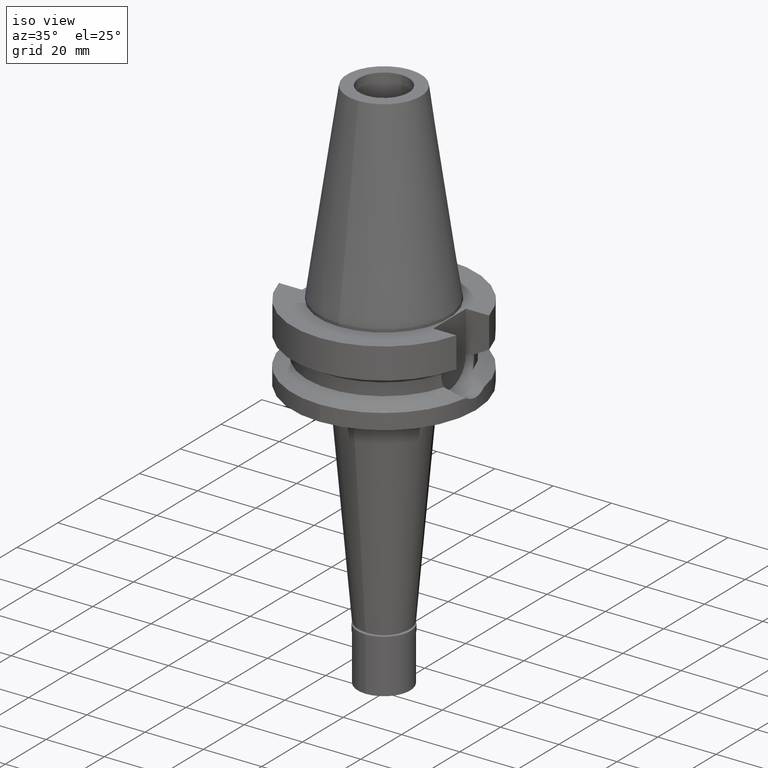
[diagram: clean part render]
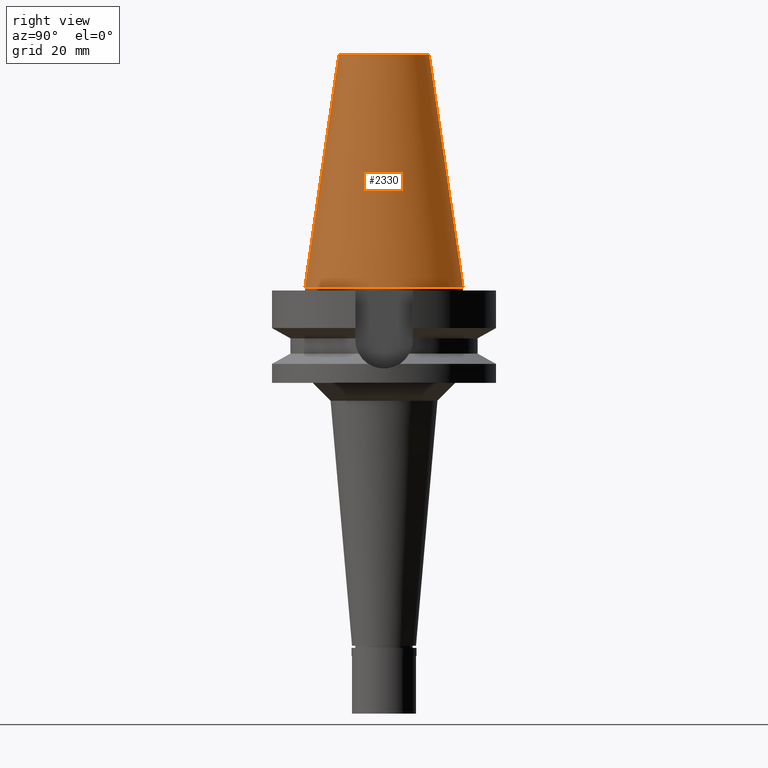
[diagram: tour spotlight — one face highlighted and labeled with its STEP entity id]
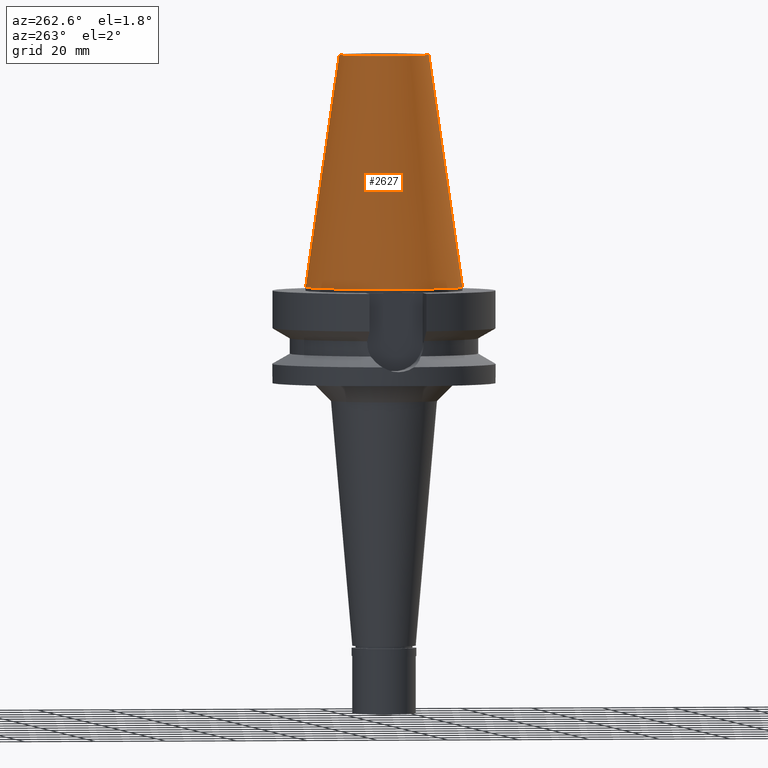
[diagram: tour spotlight — one face highlighted and labeled with its STEP entity id]
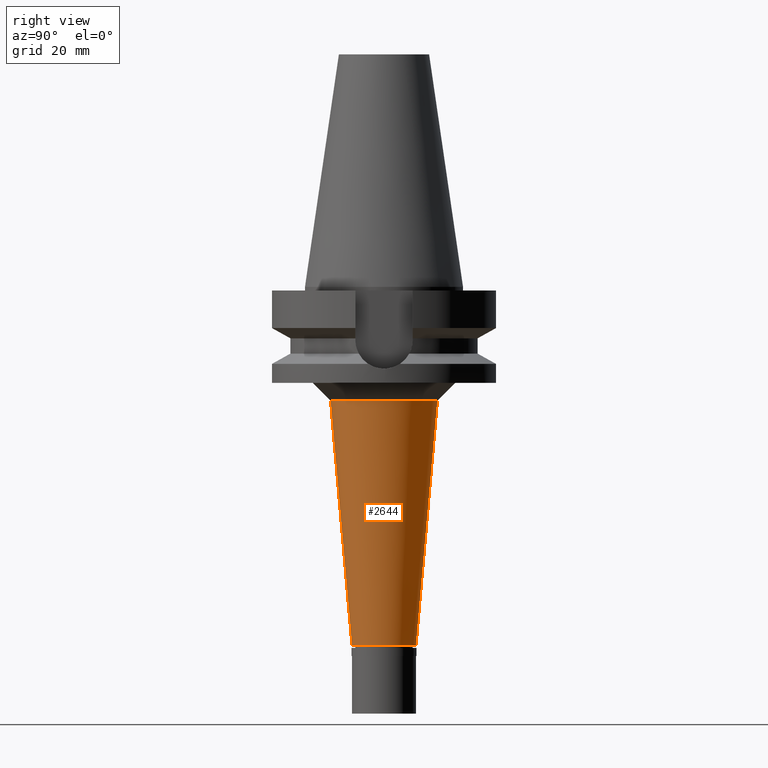
[diagram: tour spotlight — one face highlighted and labeled with its STEP entity id]
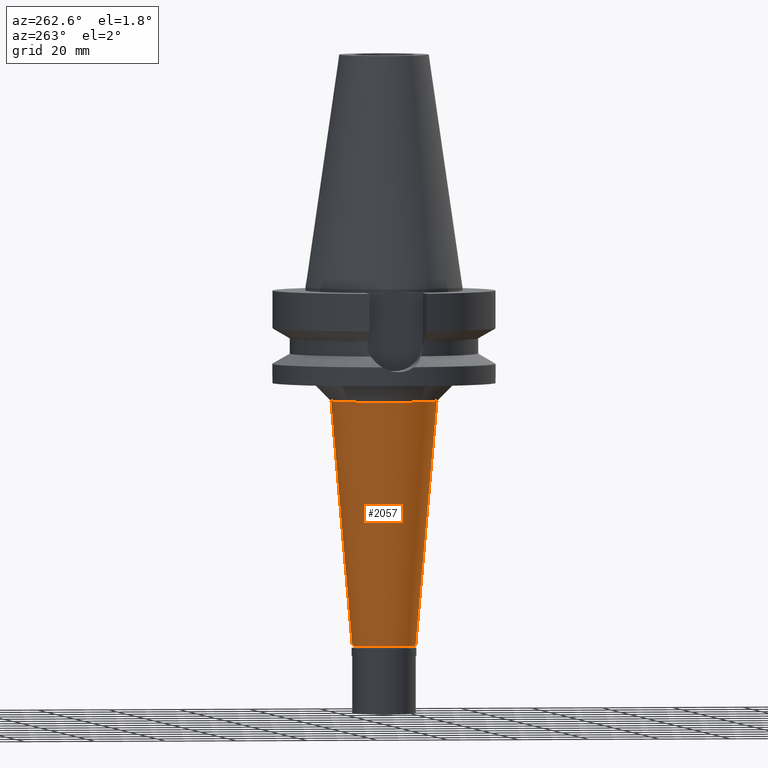
[diagram: tour spotlight — one face highlighted and labeled with its STEP entity id]
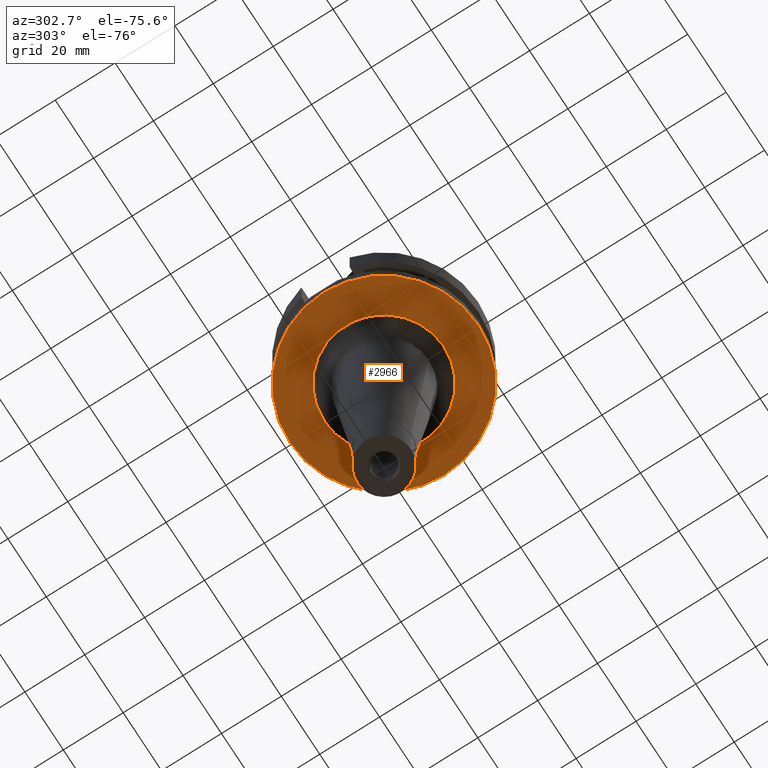
[diagram: tour spotlight — one face highlighted and labeled with its STEP entity id]
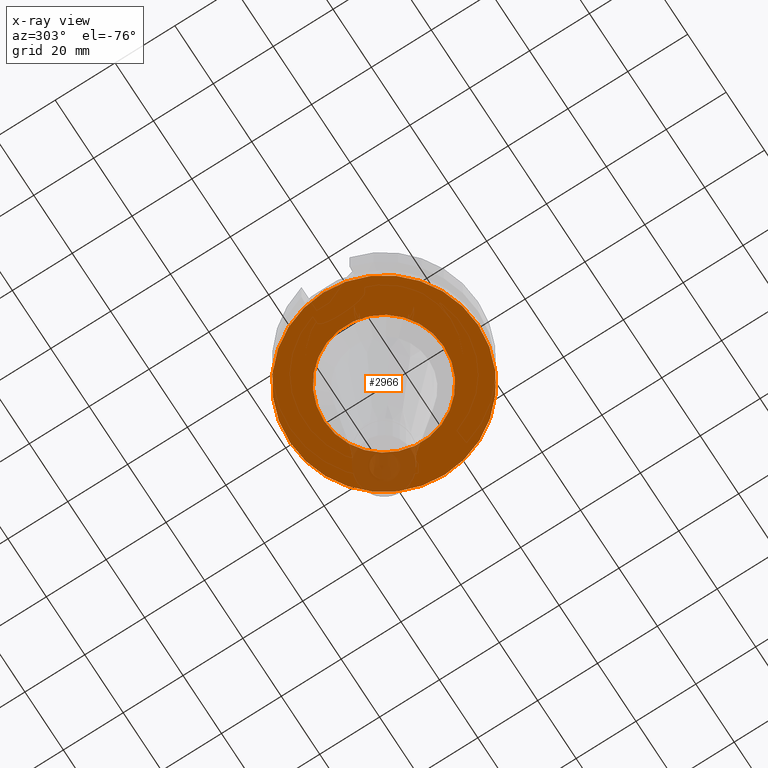
[diagram: x-ray of the same camera — body ghosted, this tour face saturated]
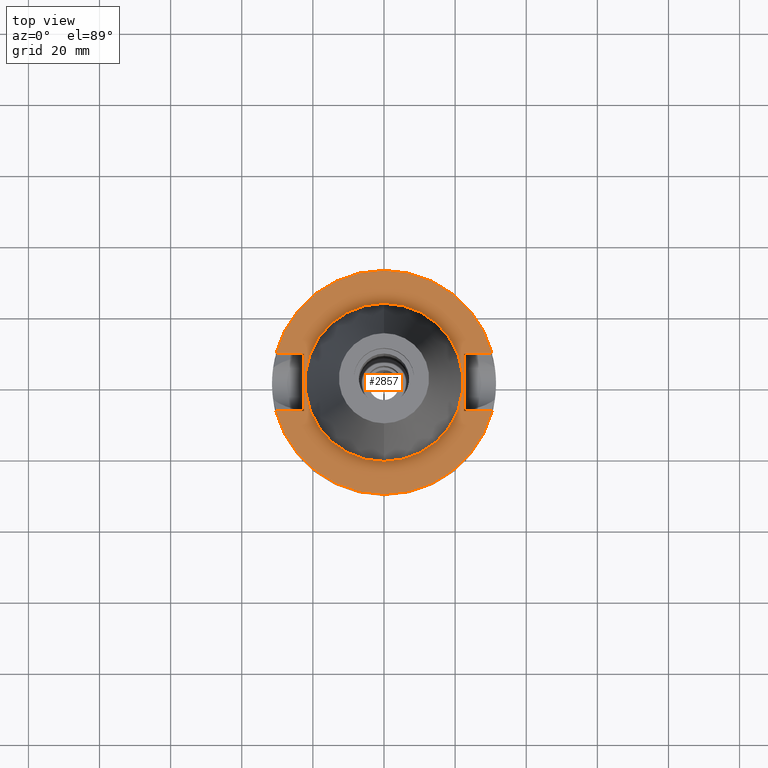
[diagram: tour spotlight — one face highlighted and labeled with its STEP entity id]
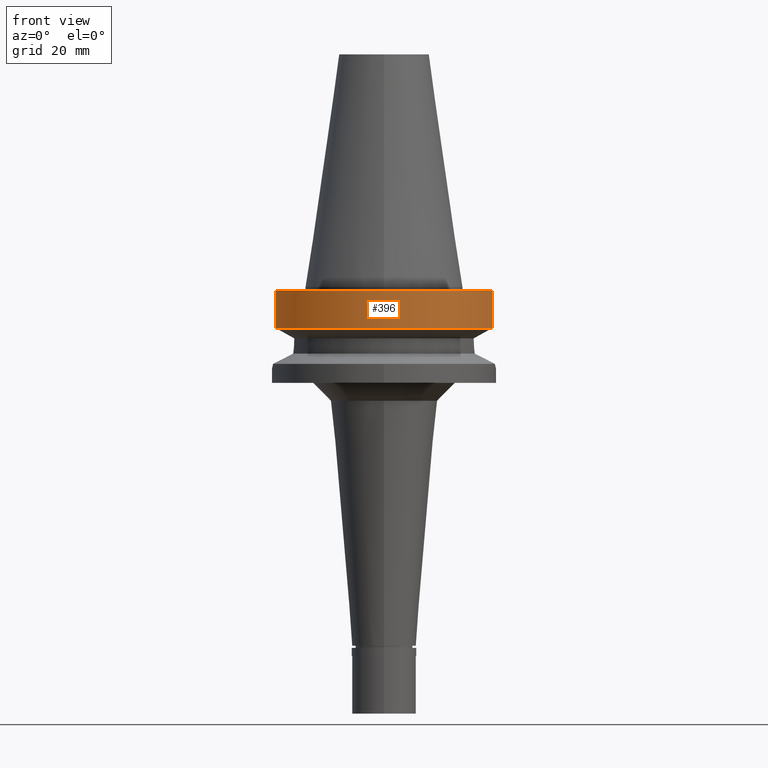
[diagram: tour spotlight — one face highlighted and labeled with its STEP entity id]
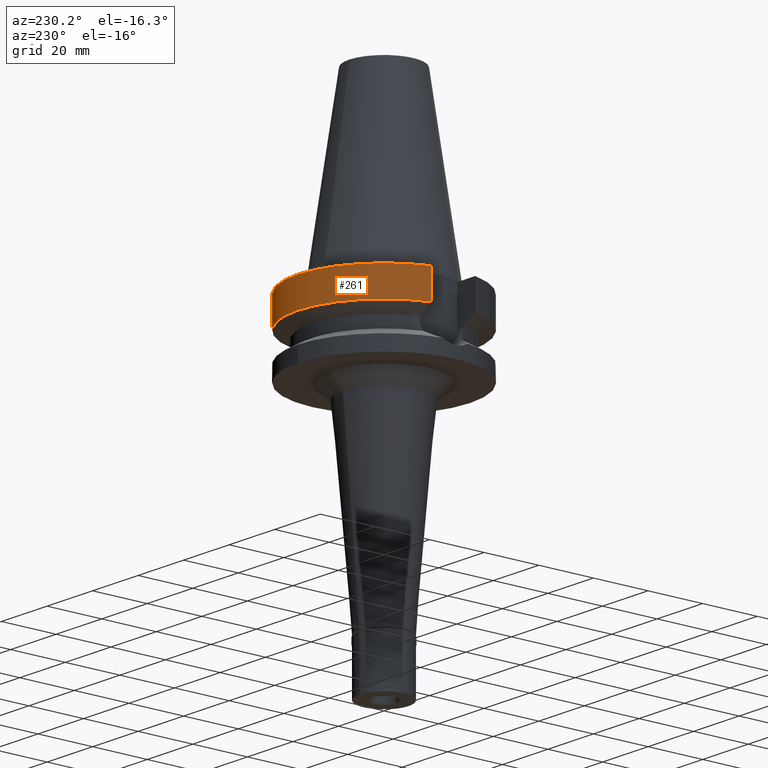
[diagram: tour spotlight — one face highlighted and labeled with its STEP entity id]
A machine part: a face-by-face anatomy tour. The part has 74 B-rep faces; the first image is the clean iso view, then the 8 largest visible faces are spotlighted one at a time (largest first), each with its STEP entity span.

Face 1 — right view, entity #2330. In plain terms, the highlighted conical surface has half-angle 8.297 deg.
Definition (entity closure, byte-faithful):
#109 = CARTESIAN_POINT ( 'NONE',  ( 0.0000000000000000000, -12.68766899429999917, 65.40000000000000568 ) ) ;
#114 = CARTESIAN_POINT ( 'NONE',  ( 0.0000000000000000000, 1.625106302469000024E-14, 65.40000000000000568 ) ) ;
#186 = DIRECTION ( 'NONE',  ( 0.0000000000000000000, 1.000000000000000000, 0.0000000000000000000 ) ) ;
#189 = EDGE_CURVE ( 'NONE', #2933, #2169, #1435, .T. ) ;
#246 = CARTESIAN_POINT ( 'NONE',  ( 0.0000000000000000000, 1.625106302469000024E-14, 32.70000000000000284 ) ) ;
#257 = DIRECTION ( 'NONE',  ( 0.0000000000000000000, -1.000000000000000000, 0.0000000000000000000 ) ) ;
#309 = ORIENTED_EDGE ( 'NONE', *, *, #1504, .F. ) ;
#428 = CONICAL_SURFACE ( 'NONE', #1236, 17.45633449714999941, 0.1448099680379422438 ) ;
#488 = CARTESIAN_POINT ( 'NONE',  ( 0.0000000000000000000, -12.68766899429999917, 65.40000000000000568 ) ) ;
#508 = DIRECTION ( 'NONE',  ( 0.0000000000000000000, 0.0000000000000000000, -1.000000000000000000 ) ) ;
#534 = DIRECTION ( 'NONE',  ( 0.0000000000000000000, 0.0000000000000000000, -1.000000000000000000 ) ) ;
#573 = LINE ( 'NONE', #109, #1147 ) ;
#584 = VERTEX_POINT ( 'NONE', #488 ) ;
#754 = DIRECTION ( 'NONE',  ( 0.0000000000000000000, 0.1443043893539925626, -0.9895333461855498891 ) ) ;
#779 = EDGE_CURVE ( 'NONE', #584, #2249, #573, .T. ) ;
#804 = CIRCLE ( 'NONE', #2145, 12.68766899429999917 ) ;
#873 = CARTESIAN_POINT ( 'NONE',  ( 0.0000000000000000000, -22.22500000000000142, 7.105427357600999334E-14 ) ) ;
#919 = CARTESIAN_POINT ( 'NONE',  ( 0.0000000000000000000, 1.625106302469000024E-14, 2.842170943039999687E-14 ) ) ;
#1031 = DIRECTION ( 'NONE',  ( 0.0000000000000000000, -0.1443043893539925626, -0.9895333461855498891 ) ) ;
#1147 = VECTOR ( 'NONE', #1031, 1000.000000000000114 ) ;
#1236 = AXIS2_PLACEMENT_3D ( 'NONE', #246, #508, #257 ) ;
#1324 = DIRECTION ( 'NONE',  ( 0.0000000000000000000, 0.0000000000000000000, -1.000000000000000000 ) ) ;
#1435 = LINE ( 'NONE', #1879, #2098 ) ;
#1504 = EDGE_CURVE ( 'NONE', #2169, #2249, #2477, .T. ) ;
#1537 = CARTESIAN_POINT ( 'NONE',  ( 0.0000000000000000000, 22.22500000000000142, 7.105427357600999334E-14 ) ) ;
#1540 = EDGE_LOOP ( 'NONE', ( #1881, #1987, #309, #1982 ) ) ;
#1568 = AXIS2_PLACEMENT_3D ( 'NONE', #919, #1324, #186 ) ;
#1879 = CARTESIAN_POINT ( 'NONE',  ( 0.0000000000000000000, 12.68766899429999917, 65.40000000000000568 ) ) ;
#1881 = ORIENTED_EDGE ( 'NONE', *, *, #2110, .T. ) ;
#1982 = ORIENTED_EDGE ( 'NONE', *, *, #189, .F. ) ;
#1987 = ORIENTED_EDGE ( 'NONE', *, *, #779, .T. ) ;
#2098 = VECTOR ( 'NONE', #754, 1000.000000000000114 ) ;
#2110 = EDGE_CURVE ( 'NONE', #2933, #584, #804, .T. ) ;
#2145 = AXIS2_PLACEMENT_3D ( 'NONE', #114, #534, #2375 ) ;
#2169 = VERTEX_POINT ( 'NONE', #1537 ) ;
#2249 = VERTEX_POINT ( 'NONE', #873 ) ;
#2330 = ADVANCED_FACE ( 'NONE', ( #2789 ), #428, .T. ) ;
#2375 = DIRECTION ( 'NONE',  ( 0.0000000000000000000, 1.000000000000000000, 0.0000000000000000000 ) ) ;
#2477 = CIRCLE ( 'NONE', #1568, 22.22500000000000142 ) ;
#2584 = CARTESIAN_POINT ( 'NONE',  ( 0.0000000000000000000, 12.68766899429999917, 65.40000000000000568 ) ) ;
#2789 = FACE_OUTER_BOUND ( 'NONE', #1540, .T. ) ;
#2933 = VERTEX_POINT ( 'NONE', #2584 ) ;

Face 2 — auxiliary view, entity #2627. In plain terms, the highlighted conical surface has half-angle 8.297 deg.
Definition (entity closure, byte-faithful):
#109 = CARTESIAN_POINT ( 'NONE',  ( 0.0000000000000000000, -12.68766899429999917, 65.40000000000000568 ) ) ;
#129 = AXIS2_PLACEMENT_3D ( 'NONE', #774, #1691, #1460 ) ;
#189 = EDGE_CURVE ( 'NONE', #2933, #2169, #1435, .T. ) ;
#208 = DIRECTION ( 'NONE',  ( 0.0000000000000000000, 0.0000000000000000000, -1.000000000000000000 ) ) ;
#299 = EDGE_LOOP ( 'NONE', ( #2357, #2928, #2940, #1327 ) ) ;
#488 = CARTESIAN_POINT ( 'NONE',  ( 0.0000000000000000000, -12.68766899429999917, 65.40000000000000568 ) ) ;
#533 = EDGE_CURVE ( 'NONE', #584, #2933, #631, .T. ) ;
#573 = LINE ( 'NONE', #109, #1147 ) ;
#584 = VERTEX_POINT ( 'NONE', #488 ) ;
#622 = CIRCLE ( 'NONE', #1857, 22.22500000000000142 ) ;
#631 = CIRCLE ( 'NONE', #2052, 12.68766899429999917 ) ;
#754 = DIRECTION ( 'NONE',  ( 0.0000000000000000000, 0.1443043893539925626, -0.9895333461855498891 ) ) ;
#774 = CARTESIAN_POINT ( 'NONE',  ( 0.0000000000000000000, 1.625106302469000024E-14, 32.70000000000000284 ) ) ;
#779 = EDGE_CURVE ( 'NONE', #584, #2249, #573, .T. ) ;
#873 = CARTESIAN_POINT ( 'NONE',  ( 0.0000000000000000000, -22.22500000000000142, 7.105427357600999334E-14 ) ) ;
#992 = FACE_OUTER_BOUND ( 'NONE', #299, .T. ) ;
#1031 = DIRECTION ( 'NONE',  ( 0.0000000000000000000, -0.1443043893539925626, -0.9895333461855498891 ) ) ;
#1147 = VECTOR ( 'NONE', #1031, 1000.000000000000114 ) ;
#1264 = DIRECTION ( 'NONE',  ( 0.0000000000000000000, -1.000000000000000000, 0.0000000000000000000 ) ) ;
#1327 = ORIENTED_EDGE ( 'NONE', *, *, #189, .T. ) ;
#1435 = LINE ( 'NONE', #1879, #2098 ) ;
#1460 = DIRECTION ( 'NONE',  ( 0.0000000000000000000, -1.000000000000000000, 0.0000000000000000000 ) ) ;
#1537 = CARTESIAN_POINT ( 'NONE',  ( 0.0000000000000000000, 22.22500000000000142, 7.105427357600999334E-14 ) ) ;
#1560 = DIRECTION ( 'NONE',  ( 0.0000000000000000000, -1.000000000000000000, 0.0000000000000000000 ) ) ;
#1691 = DIRECTION ( 'NONE',  ( 0.0000000000000000000, 0.0000000000000000000, -1.000000000000000000 ) ) ;
#1857 = AXIS2_PLACEMENT_3D ( 'NONE', #1929, #2852, #1264 ) ;
#1879 = CARTESIAN_POINT ( 'NONE',  ( 0.0000000000000000000, 12.68766899429999917, 65.40000000000000568 ) ) ;
#1929 = CARTESIAN_POINT ( 'NONE',  ( 0.0000000000000000000, 1.625106302469000024E-14, 2.842170943039999687E-14 ) ) ;
#2037 = EDGE_CURVE ( 'NONE', #2249, #2169, #622, .T. ) ;
#2052 = AXIS2_PLACEMENT_3D ( 'NONE', #2053, #208, #1560 ) ;
#2053 = CARTESIAN_POINT ( 'NONE',  ( 0.0000000000000000000, 1.625106302469000024E-14, 65.40000000000000568 ) ) ;
#2098 = VECTOR ( 'NONE', #754, 1000.000000000000114 ) ;
#2169 = VERTEX_POINT ( 'NONE', #1537 ) ;
#2249 = VERTEX_POINT ( 'NONE', #873 ) ;
#2357 = ORIENTED_EDGE ( 'NONE', *, *, #2037, .F. ) ;
#2584 = CARTESIAN_POINT ( 'NONE',  ( 0.0000000000000000000, 12.68766899429999917, 65.40000000000000568 ) ) ;
#2627 = ADVANCED_FACE ( 'NONE', ( #992 ), #2673, .T. ) ;
#2673 = CONICAL_SURFACE ( 'NONE', #129, 17.45633449714999941, 0.1448099680379422438 ) ;
#2852 = DIRECTION ( 'NONE',  ( 0.0000000000000000000, 0.0000000000000000000, -1.000000000000000000 ) ) ;
#2928 = ORIENTED_EDGE ( 'NONE', *, *, #779, .F. ) ;
#2933 = VERTEX_POINT ( 'NONE', #2584 ) ;
#2940 = ORIENTED_EDGE ( 'NONE', *, *, #533, .T. ) ;

Face 3 — right view, entity #2644. In plain terms, the highlighted conical surface has half-angle 5 deg.
Definition (entity closure, byte-faithful):
#176 = AXIS2_PLACEMENT_3D ( 'NONE', #1566, #2465, #234 ) ;
#234 = DIRECTION ( 'NONE',  ( 0.0000000000000000000, -1.000000000000000000, 0.0000000000000000000 ) ) ;
#253 = DIRECTION ( 'NONE',  ( 0.0000000000000000000, 0.08715574274768382590, -0.9961946980917432137 ) ) ;
#314 = CONICAL_SURFACE ( 'NONE', #464, 12.01398445847000040, 0.08726646259969973729 ) ;
#318 = EDGE_CURVE ( 'NONE', #2626, #2302, #1816, .T. ) ;
#464 = AXIS2_PLACEMENT_3D ( 'NONE', #1064, #592, #1548 ) ;
#503 = LINE ( 'NONE', #736, #634 ) ;
#592 = DIRECTION ( 'NONE',  ( 0.0000000000000000000, 0.0000000000000000000, 1.000000000000000000 ) ) ;
#633 = FACE_OUTER_BOUND ( 'NONE', #1241, .T. ) ;
#634 = VECTOR ( 'NONE', #2957, 1000.000000000000227 ) ;
#637 = ORIENTED_EDGE ( 'NONE', *, *, #318, .T. ) ;
#736 = CARTESIAN_POINT ( 'NONE',  ( 0.0000000000000000000, 15.02796891694000081, -32.00000000000000000 ) ) ;
#835 = VECTOR ( 'NONE', #253, 1000.000000000000227 ) ;
#1063 = DIRECTION ( 'NONE',  ( 0.0000000000000000000, -1.000000000000000000, 0.0000000000000000000 ) ) ;
#1064 = CARTESIAN_POINT ( 'NONE',  ( 0.0000000000000000000, 0.0000000000000000000, -66.44999999999998863 ) ) ;
#1118 = EDGE_CURVE ( 'NONE', #2893, #2302, #503, .T. ) ;
#1213 = CARTESIAN_POINT ( 'NONE',  ( 0.0000000000000000000, -15.02796891694000081, -32.00000000000000000 ) ) ;
#1216 = CARTESIAN_POINT ( 'NONE',  ( 0.0000000000000000000, -9.000000000002000178, -100.9000000000000057 ) ) ;
#1241 = EDGE_LOOP ( 'NONE', ( #1347, #1960, #637, #1694 ) ) ;
#1347 = ORIENTED_EDGE ( 'NONE', *, *, #1384, .F. ) ;
#1384 = EDGE_CURVE ( 'NONE', #2973, #2893, #2959, .T. ) ;
#1490 = DIRECTION ( 'NONE',  ( 0.0000000000000000000, 0.0000000000000000000, 1.000000000000000000 ) ) ;
#1548 = DIRECTION ( 'NONE',  ( 0.0000000000000000000, 1.000000000000000000, 0.0000000000000000000 ) ) ;
#1562 = LINE ( 'NONE', #2065, #835 ) ;
#1566 = CARTESIAN_POINT ( 'NONE',  ( 0.0000000000000000000, 0.0000000000000000000, -32.00000000000000000 ) ) ;
#1683 = AXIS2_PLACEMENT_3D ( 'NONE', #1994, #1490, #1063 ) ;
#1694 = ORIENTED_EDGE ( 'NONE', *, *, #1118, .F. ) ;
#1748 = CARTESIAN_POINT ( 'NONE',  ( 0.0000000000000000000, 9.000000000002000178, -100.9000000000000057 ) ) ;
#1816 = CIRCLE ( 'NONE', #1683, 9.000000000002000178 ) ;
#1960 = ORIENTED_EDGE ( 'NONE', *, *, #2906, .T. ) ;
#1994 = CARTESIAN_POINT ( 'NONE',  ( 0.0000000000000000000, 0.0000000000000000000, -100.9000000000000057 ) ) ;
#2065 = CARTESIAN_POINT ( 'NONE',  ( 0.0000000000000000000, -15.02796891694000081, -32.00000000000000000 ) ) ;
#2302 = VERTEX_POINT ( 'NONE', #1748 ) ;
#2465 = DIRECTION ( 'NONE',  ( 0.0000000000000000000, 0.0000000000000000000, 1.000000000000000000 ) ) ;
#2626 = VERTEX_POINT ( 'NONE', #1216 ) ;
#2644 = ADVANCED_FACE ( 'NONE', ( #633 ), #314, .T. ) ;
#2893 = VERTEX_POINT ( 'NONE', #2963 ) ;
#2906 = EDGE_CURVE ( 'NONE', #2973, #2626, #1562, .T. ) ;
#2957 = DIRECTION ( 'NONE',  ( 0.0000000000000000000, -0.08715574274768382590, -0.9961946980917432137 ) ) ;
#2959 = CIRCLE ( 'NONE', #176, 15.02796891694000081 ) ;
#2963 = CARTESIAN_POINT ( 'NONE',  ( 0.0000000000000000000, 15.02796891694000081, -32.00000000000000000 ) ) ;
#2973 = VERTEX_POINT ( 'NONE', #1213 ) ;

Face 4 — auxiliary view, entity #2057. In plain terms, the highlighted conical surface has half-angle 5 deg.
Definition (entity closure, byte-faithful):
#164 = CARTESIAN_POINT ( 'NONE',  ( 0.0000000000000000000, 0.0000000000000000000, -32.00000000000000000 ) ) ;
#253 = DIRECTION ( 'NONE',  ( 0.0000000000000000000, 0.08715574274768382590, -0.9961946980917432137 ) ) ;
#353 = EDGE_CURVE ( 'NONE', #2973, #2893, #2586, .T. ) ;
#370 = ORIENTED_EDGE ( 'NONE', *, *, #1118, .T. ) ;
#432 = EDGE_CURVE ( 'NONE', #2302, #2626, #1240, .T. ) ;
#434 = AXIS2_PLACEMENT_3D ( 'NONE', #164, #2215, #1316 ) ;
#474 = AXIS2_PLACEMENT_3D ( 'NONE', #788, #970, #1940 ) ;
#503 = LINE ( 'NONE', #736, #634 ) ;
#634 = VECTOR ( 'NONE', #2957, 1000.000000000000227 ) ;
#736 = CARTESIAN_POINT ( 'NONE',  ( 0.0000000000000000000, 15.02796891694000081, -32.00000000000000000 ) ) ;
#788 = CARTESIAN_POINT ( 'NONE',  ( 0.0000000000000000000, 0.0000000000000000000, -66.44999999999998863 ) ) ;
#835 = VECTOR ( 'NONE', #253, 1000.000000000000227 ) ;
#970 = DIRECTION ( 'NONE',  ( 0.0000000000000000000, 0.0000000000000000000, 1.000000000000000000 ) ) ;
#1075 = DIRECTION ( 'NONE',  ( 0.0000000000000000000, 0.0000000000000000000, 1.000000000000000000 ) ) ;
#1118 = EDGE_CURVE ( 'NONE', #2893, #2302, #503, .T. ) ;
#1187 = CONICAL_SURFACE ( 'NONE', #474, 12.01398445847000040, 0.08726646259969973729 ) ;
#1213 = CARTESIAN_POINT ( 'NONE',  ( 0.0000000000000000000, -15.02796891694000081, -32.00000000000000000 ) ) ;
#1216 = CARTESIAN_POINT ( 'NONE',  ( 0.0000000000000000000, -9.000000000002000178, -100.9000000000000057 ) ) ;
#1240 = CIRCLE ( 'NONE', #1389, 9.000000000002000178 ) ;
#1316 = DIRECTION ( 'NONE',  ( 0.0000000000000000000, -1.000000000000000000, 0.0000000000000000000 ) ) ;
#1389 = AXIS2_PLACEMENT_3D ( 'NONE', #1717, #1075, #2427 ) ;
#1562 = LINE ( 'NONE', #2065, #835 ) ;
#1585 = ORIENTED_EDGE ( 'NONE', *, *, #432, .T. ) ;
#1717 = CARTESIAN_POINT ( 'NONE',  ( 0.0000000000000000000, 0.0000000000000000000, -100.9000000000000057 ) ) ;
#1748 = CARTESIAN_POINT ( 'NONE',  ( 0.0000000000000000000, 9.000000000002000178, -100.9000000000000057 ) ) ;
#1940 = DIRECTION ( 'NONE',  ( 0.0000000000000000000, 1.000000000000000000, 0.0000000000000000000 ) ) ;
#2057 = ADVANCED_FACE ( 'NONE', ( #2184 ), #1187, .T. ) ;
#2065 = CARTESIAN_POINT ( 'NONE',  ( 0.0000000000000000000, -15.02796891694000081, -32.00000000000000000 ) ) ;
#2184 = FACE_OUTER_BOUND ( 'NONE', #2526, .T. ) ;
#2215 = DIRECTION ( 'NONE',  ( 0.0000000000000000000, 0.0000000000000000000, -1.000000000000000000 ) ) ;
#2302 = VERTEX_POINT ( 'NONE', #1748 ) ;
#2427 = DIRECTION ( 'NONE',  ( 0.0000000000000000000, 1.000000000000000000, 0.0000000000000000000 ) ) ;
#2526 = EDGE_LOOP ( 'NONE', ( #1585, #2932, #2653, #370 ) ) ;
#2586 = CIRCLE ( 'NONE', #434, 15.02796891694000081 ) ;
#2626 = VERTEX_POINT ( 'NONE', #1216 ) ;
#2653 = ORIENTED_EDGE ( 'NONE', *, *, #353, .T. ) ;
#2893 = VERTEX_POINT ( 'NONE', #2963 ) ;
#2906 = EDGE_CURVE ( 'NONE', #2973, #2626, #1562, .T. ) ;
#2932 = ORIENTED_EDGE ( 'NONE', *, *, #2906, .F. ) ;
#2957 = DIRECTION ( 'NONE',  ( 0.0000000000000000000, -0.08715574274768382590, -0.9961946980917432137 ) ) ;
#2963 = CARTESIAN_POINT ( 'NONE',  ( 0.0000000000000000000, 15.02796891694000081, -32.00000000000000000 ) ) ;
#2973 = VERTEX_POINT ( 'NONE', #1213 ) ;

Face 5 — auxiliary view, entity #2966. An x-ray twin of the same camera follows (body ghosted, this face saturated) — the face is partly hidden behind the body. In plain terms, the highlighted planar face has unit normal (0, 0, -1).
Definition (entity closure, byte-faithful):
#122 = DIRECTION ( 'NONE',  ( 0.0000000000000000000, -1.000000000000000000, 0.0000000000000000000 ) ) ;
#219 = EDGE_CURVE ( 'NONE', #1919, #2286, #1140, .T. ) ;
#486 = ORIENTED_EDGE ( 'NONE', *, *, #219, .F. ) ;
#547 = DIRECTION ( 'NONE',  ( 0.0000000000000000000, 0.0000000000000000000, 1.000000000000000000 ) ) ;
#558 = DIRECTION ( 'NONE',  ( 0.0000000000000000000, -1.000000000000000000, 0.0000000000000000000 ) ) ;
#607 = CARTESIAN_POINT ( 'NONE',  ( 0.0000000000000000000, -31.50000000000000000, -27.00000000000000000 ) ) ;
#639 = EDGE_LOOP ( 'NONE', ( #2208, #2487 ) ) ;
#665 = AXIS2_PLACEMENT_3D ( 'NONE', #2598, #1650, #558 ) ;
#766 = AXIS2_PLACEMENT_3D ( 'NONE', #2634, #2883, #2435 ) ;
#771 = CIRCLE ( 'NONE', #2256, 20.02796891694000081 ) ;
#773 = CARTESIAN_POINT ( 'NONE',  ( 0.0000000000000000000, 2.136273876432999670E-14, -27.00000000000000000 ) ) ;
#838 = EDGE_CURVE ( 'NONE', #2530, #2792, #771, .T. ) ;
#903 = AXIS2_PLACEMENT_3D ( 'NONE', #773, #547, #1190 ) ;
#942 = AXIS2_PLACEMENT_3D ( 'NONE', #1942, #2402, #1972 ) ;
#1140 = CIRCLE ( 'NONE', #903, 31.50000000000000000 ) ;
#1190 = DIRECTION ( 'NONE',  ( 0.0000000000000000000, 1.000000000000000000, 0.0000000000000000000 ) ) ;
#1196 = EDGE_CURVE ( 'NONE', #2286, #1919, #2837, .T. ) ;
#1255 = EDGE_CURVE ( 'NONE', #2792, #2530, #2719, .T. ) ;
#1499 = CARTESIAN_POINT ( 'NONE',  ( 0.0000000000000000000, 0.0000000000000000000, -27.00000000000000000 ) ) ;
#1650 = DIRECTION ( 'NONE',  ( 0.0000000000000000000, 0.0000000000000000000, -1.000000000000000000 ) ) ;
#1685 = EDGE_LOOP ( 'NONE', ( #486, #2714 ) ) ;
#1689 = DIRECTION ( 'NONE',  ( 0.0000000000000000000, 0.0000000000000000000, -1.000000000000000000 ) ) ;
#1919 = VERTEX_POINT ( 'NONE', #2307 ) ;
#1922 = FACE_BOUND ( 'NONE', #639, .T. ) ;
#1942 = CARTESIAN_POINT ( 'NONE',  ( 0.0000000000000000000, 0.0000000000000000000, -27.00000000000000000 ) ) ;
#1972 = DIRECTION ( 'NONE',  ( 0.0000000000000000000, 1.000000000000000000, 0.0000000000000000000 ) ) ;
#2115 = FACE_OUTER_BOUND ( 'NONE', #1685, .T. ) ;
#2208 = ORIENTED_EDGE ( 'NONE', *, *, #1255, .F. ) ;
#2256 = AXIS2_PLACEMENT_3D ( 'NONE', #1499, #1689, #122 ) ;
#2286 = VERTEX_POINT ( 'NONE', #607 ) ;
#2307 = CARTESIAN_POINT ( 'NONE',  ( 0.0000000000000000000, 31.50000000000000000, -27.00000000000000000 ) ) ;
#2386 = CARTESIAN_POINT ( 'NONE',  ( 0.0000000000000000000, -20.02796891694000081, -27.00000000000000000 ) ) ;
#2402 = DIRECTION ( 'NONE',  ( 0.0000000000000000000, 0.0000000000000000000, -1.000000000000000000 ) ) ;
#2435 = DIRECTION ( 'NONE',  ( 0.0000000000000000000, -1.000000000000000000, 0.0000000000000000000 ) ) ;
#2487 = ORIENTED_EDGE ( 'NONE', *, *, #838, .F. ) ;
#2530 = VERTEX_POINT ( 'NONE', #2386 ) ;
#2598 = CARTESIAN_POINT ( 'NONE',  ( 0.0000000000000000000, 0.0000000000000000000, -27.00000000000000000 ) ) ;
#2634 = CARTESIAN_POINT ( 'NONE',  ( 0.0000000000000000000, 2.136273876432999670E-14, -27.00000000000000000 ) ) ;
#2714 = ORIENTED_EDGE ( 'NONE', *, *, #1196, .F. ) ;
#2719 = CIRCLE ( 'NONE', #942, 20.02796891694000081 ) ;
#2786 = PLANE ( 'NONE',  #665 ) ;
#2792 = VERTEX_POINT ( 'NONE', #2903 ) ;
#2837 = CIRCLE ( 'NONE', #766, 31.50000000000000000 ) ;
#2883 = DIRECTION ( 'NONE',  ( 0.0000000000000000000, 0.0000000000000000000, 1.000000000000000000 ) ) ;
#2903 = CARTESIAN_POINT ( 'NONE',  ( 0.0000000000000000000, 20.02796891694000081, -27.00000000000000000 ) ) ;
#2966 = ADVANCED_FACE ( 'NONE', ( #2115, #1922 ), #2786, .T. ) ;

Face 6 — top view, entity #2857. In plain terms, the highlighted planar face has unit normal (0, 0, -1).
Definition (entity closure, byte-faithful):
#4 = CARTESIAN_POINT ( 'NONE',  ( 0.0000000000000000000, 2.136273876432999670E-14, -0.9999999999999000799 ) ) ;
#8 = VERTEX_POINT ( 'NONE', #2452 ) ;
#24 = LINE ( 'NONE', #1849, #892 ) ;
#37 = VECTOR ( 'NONE', #1583, 1000.000000000000000 ) ;
#47 = ORIENTED_EDGE ( 'NONE', *, *, #2927, .F. ) ;
#165 = CARTESIAN_POINT ( 'NONE',  ( 0.0000000000000000000, 2.136273876432999670E-14, -0.9999999999999000799 ) ) ;
#167 = EDGE_CURVE ( 'NONE', #2010, #1442, #952, .T. ) ;
#171 = LINE ( 'NONE', #1341, #37 ) ;
#172 = VERTEX_POINT ( 'NONE', #2588 ) ;
#206 = EDGE_CURVE ( 'NONE', #2782, #1709, #2728, .T. ) ;
#294 = VERTEX_POINT ( 'NONE', #1203 ) ;
#303 = CARTESIAN_POINT ( 'NONE',  ( 0.0000000000000000000, 2.136273876432999670E-14, -0.9999999999999000799 ) ) ;
#409 = DIRECTION ( 'NONE',  ( 0.0000000000000000000, -1.000000000000000000, 0.0000000000000000000 ) ) ;
#438 = ORIENTED_EDGE ( 'NONE', *, *, #167, .F. ) ;
#441 = ORIENTED_EDGE ( 'NONE', *, *, #2890, .F. ) ;
#453 = EDGE_CURVE ( 'NONE', #294, #2904, #1275, .T. ) ;
#472 = VECTOR ( 'NONE', #2517, 1000.000000000000000 ) ;
#489 = CARTESIAN_POINT ( 'NONE',  ( 22.50000000000000000, -8.050000000000000711, -1.000000000000000000 ) ) ;
#536 = AXIS2_PLACEMENT_3D ( 'NONE', #303, #2554, #2569 ) ;
#620 = EDGE_CURVE ( 'NONE', #172, #2744, #2631, .T. ) ;
#660 = FACE_OUTER_BOUND ( 'NONE', #983, .T. ) ;
#698 = DIRECTION ( 'NONE',  ( 0.0000000000000000000, 0.0000000000000000000, -1.000000000000000000 ) ) ;
#748 = ORIENTED_EDGE ( 'NONE', *, *, #1819, .T. ) ;
#768 = ORIENTED_EDGE ( 'NONE', *, *, #2742, .F. ) ;
#822 = CARTESIAN_POINT ( 'NONE',  ( 30.45402272279000044, 8.050000000000000711, -0.9999999999999000799 ) ) ;
#828 = ORIENTED_EDGE ( 'NONE', *, *, #1416, .T. ) ;
#858 = CARTESIAN_POINT ( 'NONE',  ( -22.50000000000000000, -8.050000000000000711, -1.000000000000000000 ) ) ;
#884 = DIRECTION ( 'NONE',  ( 1.000000000000000000, 3.573249715389999860E-14, 0.0000000000000000000 ) ) ;
#892 = VECTOR ( 'NONE', #2791, 1000.000000000000000 ) ;
#913 = DIRECTION ( 'NONE',  ( 0.0000000000000000000, 1.000000000000000000, 0.0000000000000000000 ) ) ;
#926 = CARTESIAN_POINT ( 'NONE',  ( 22.50000000000000000, -8.050000000000000711, -1.000000000000000000 ) ) ;
#945 = DIRECTION ( 'NONE',  ( -1.000000000000000000, -3.550916904668000126E-14, 0.0000000000000000000 ) ) ;
#952 = CIRCLE ( 'NONE', #2972, 22.22500000000000142 ) ;
#983 = EDGE_LOOP ( 'NONE', ( #748, #1331, #47, #2209, #828, #1613, #441, #1728 ) ) ;
#991 = DIRECTION ( 'NONE',  ( 0.0000000000000000000, 1.000000000000000000, 0.0000000000000000000 ) ) ;
#1020 = CARTESIAN_POINT ( 'NONE',  ( 0.0000000000000000000, 2.136273876432999670E-14, -0.9999999999999000799 ) ) ;
#1124 = VECTOR ( 'NONE', #945, 1000.000000000000000 ) ;
#1203 = CARTESIAN_POINT ( 'NONE',  ( 22.50000000000000000, 8.050000000000000711, -1.000000000000000000 ) ) ;
#1251 = DIRECTION ( 'NONE',  ( 0.0000000000000000000, 0.0000000000000000000, 1.000000000000000000 ) ) ;
#1275 = LINE ( 'NONE', #2196, #1290 ) ;
#1290 = VECTOR ( 'NONE', #409, 1000.000000000000000 ) ;
#1297 = CARTESIAN_POINT ( 'NONE',  ( 30.45402272279000044, -8.050000000000000711, -1.000000000000000000 ) ) ;
#1331 = ORIENTED_EDGE ( 'NONE', *, *, #206, .F. ) ;
#1341 = CARTESIAN_POINT ( 'NONE',  ( 22.50000000000000000, 8.050000000000000711, -1.000000000000000000 ) ) ;
#1352 = DIRECTION ( 'NONE',  ( 0.0000000000000000000, 0.0000000000000000000, -1.000000000000000000 ) ) ;
#1353 = PLANE ( 'NONE',  #2713 ) ;
#1416 = EDGE_CURVE ( 'NONE', #294, #2744, #171, .T. ) ;
#1432 = LINE ( 'NONE', #1652, #472 ) ;
#1442 = VERTEX_POINT ( 'NONE', #2273 ) ;
#1501 = DIRECTION ( 'NONE',  ( 0.0000000000000000000, 0.0000000000000000000, 1.000000000000000000 ) ) ;
#1583 = DIRECTION ( 'NONE',  ( 1.000000000000000000, -3.506251283225999947E-14, 0.0000000000000000000 ) ) ;
#1592 = FACE_BOUND ( 'NONE', #2559, .T. ) ;
#1613 = ORIENTED_EDGE ( 'NONE', *, *, #620, .F. ) ;
#1652 = CARTESIAN_POINT ( 'NONE',  ( -22.50000000000000000, -8.050000000000000711, -1.000000000000000000 ) ) ;
#1709 = VERTEX_POINT ( 'NONE', #2136 ) ;
#1728 = ORIENTED_EDGE ( 'NONE', *, *, #1763, .F. ) ;
#1763 = EDGE_CURVE ( 'NONE', #2675, #8, #24, .T. ) ;
#1818 = LINE ( 'NONE', #926, #2816 ) ;
#1819 = EDGE_CURVE ( 'NONE', #2675, #1709, #1432, .T. ) ;
#1831 = CARTESIAN_POINT ( 'NONE',  ( 0.0000000000000000000, 1.212400331155999925E-14, -1.000000000000000000 ) ) ;
#1849 = CARTESIAN_POINT ( 'NONE',  ( -22.50000000000000000, -8.050000000000000711, -1.000000000000000000 ) ) ;
#1995 = DIRECTION ( 'NONE',  ( 0.0000000000000000000, -1.000000000000000000, 0.0000000000000000000 ) ) ;
#2008 = AXIS2_PLACEMENT_3D ( 'NONE', #4, #1352, #913 ) ;
#2010 = VERTEX_POINT ( 'NONE', #2156 ) ;
#2039 = DIRECTION ( 'NONE',  ( 0.0000000000000000000, -1.000000000000000000, 0.0000000000000000000 ) ) ;
#2136 = CARTESIAN_POINT ( 'NONE',  ( -30.45402272279000044, -8.050000000000000711, -1.000000000000000000 ) ) ;
#2156 = CARTESIAN_POINT ( 'NONE',  ( 0.0000000000000000000, 22.22500000000000142, -0.9999999999999000799 ) ) ;
#2196 = CARTESIAN_POINT ( 'NONE',  ( 22.50000000000000000, 8.050000000000000711, -1.000000000000000000 ) ) ;
#2209 = ORIENTED_EDGE ( 'NONE', *, *, #453, .F. ) ;
#2270 = LINE ( 'NONE', #2296, #1124 ) ;
#2273 = CARTESIAN_POINT ( 'NONE',  ( 0.0000000000000000000, -22.22500000000000142, -0.9999999999999000799 ) ) ;
#2296 = CARTESIAN_POINT ( 'NONE',  ( -22.50000000000000000, 8.050000000000000711, -1.000000000000000000 ) ) ;
#2374 = CIRCLE ( 'NONE', #2470, 22.22500000000000142 ) ;
#2452 = CARTESIAN_POINT ( 'NONE',  ( -22.50000000000000000, 8.050000000000000711, -1.000000000000000000 ) ) ;
#2470 = AXIS2_PLACEMENT_3D ( 'NONE', #165, #1501, #1995 ) ;
#2517 = DIRECTION ( 'NONE',  ( -1.000000000000000000, 3.550916904668000126E-14, 0.0000000000000000000 ) ) ;
#2554 = DIRECTION ( 'NONE',  ( 0.0000000000000000000, 0.0000000000000000000, -1.000000000000000000 ) ) ;
#2559 = EDGE_LOOP ( 'NONE', ( #438, #768 ) ) ;
#2569 = DIRECTION ( 'NONE',  ( 0.0000000000000000000, -1.000000000000000000, 0.0000000000000000000 ) ) ;
#2588 = CARTESIAN_POINT ( 'NONE',  ( -30.45402272279000044, 8.050000000000000711, -1.000000000000000000 ) ) ;
#2631 = CIRCLE ( 'NONE', #2008, 31.50000000000000000 ) ;
#2675 = VERTEX_POINT ( 'NONE', #858 ) ;
#2713 = AXIS2_PLACEMENT_3D ( 'NONE', #1831, #698, #2039 ) ;
#2728 = CIRCLE ( 'NONE', #536, 31.50000000000000000 ) ;
#2742 = EDGE_CURVE ( 'NONE', #1442, #2010, #2374, .T. ) ;
#2744 = VERTEX_POINT ( 'NONE', #822 ) ;
#2782 = VERTEX_POINT ( 'NONE', #1297 ) ;
#2791 = DIRECTION ( 'NONE',  ( 0.0000000000000000000, 1.000000000000000000, 0.0000000000000000000 ) ) ;
#2816 = VECTOR ( 'NONE', #884, 1000.000000000000000 ) ;
#2857 = ADVANCED_FACE ( 'NONE', ( #660, #1592 ), #1353, .F. ) ;
#2890 = EDGE_CURVE ( 'NONE', #8, #172, #2270, .T. ) ;
#2904 = VERTEX_POINT ( 'NONE', #489 ) ;
#2927 = EDGE_CURVE ( 'NONE', #2904, #2782, #1818, .T. ) ;
#2972 = AXIS2_PLACEMENT_3D ( 'NONE', #1020, #1251, #991 ) ;

Face 7 — front view, entity #396. In plain terms, the highlighted cylindrical surface (partial cylindrical patch) has radius 31.5 mm, axis along (0, 0, -1).
Definition (entity closure, byte-faithful):
#110 = DIRECTION ( 'NONE',  ( 0.0000000000000000000, -1.000000000000000000, 0.0000000000000000000 ) ) ;
#156 = ORIENTED_EDGE ( 'NONE', *, *, #206, .T. ) ;
#204 = EDGE_CURVE ( 'NONE', #2596, #1570, #2432, .T. ) ;
#206 = EDGE_CURVE ( 'NONE', #2782, #1709, #2728, .T. ) ;
#240 = LINE ( 'NONE', #2269, #954 ) ;
#303 = CARTESIAN_POINT ( 'NONE',  ( 0.0000000000000000000, 2.136273876432999670E-14, -0.9999999999999000799 ) ) ;
#306 = CARTESIAN_POINT ( 'NONE',  ( -30.45402291362999847, -8.049999278036001016, -11.56551215524999954 ) ) ;
#396 = ADVANCED_FACE ( 'NONE', ( #1535 ), #1980, .T. ) ;
#491 = EDGE_CURVE ( 'NONE', #2782, #1570, #240, .T. ) ;
#536 = AXIS2_PLACEMENT_3D ( 'NONE', #303, #2554, #2569 ) ;
#675 = AXIS2_PLACEMENT_3D ( 'NONE', #1477, #2166, #110 ) ;
#796 = DIRECTION ( 'NONE',  ( 0.0000000000000000000, 0.0000000000000000000, -1.000000000000000000 ) ) ;
#857 = CARTESIAN_POINT ( 'NONE',  ( 0.0000000000000000000, 2.136273876432999670E-14, 74.44000000000001194 ) ) ;
#953 = DIRECTION ( 'NONE',  ( 1.806236326615990701E-08, -6.833211502221963260E-08, 0.9999999999999974465 ) ) ;
#954 = VECTOR ( 'NONE', #2491, 1000.000000000000114 ) ;
#971 = EDGE_LOOP ( 'NONE', ( #1412, #1026, #2266, #156 ) ) ;
#1026 = ORIENTED_EDGE ( 'NONE', *, *, #204, .T. ) ;
#1175 = CARTESIAN_POINT ( 'NONE',  ( 30.45402272279000044, -8.049999999999000622, -11.56550565266999975 ) ) ;
#1297 = CARTESIAN_POINT ( 'NONE',  ( 30.45402272279000044, -8.050000000000000711, -1.000000000000000000 ) ) ;
#1412 = ORIENTED_EDGE ( 'NONE', *, *, #1700, .F. ) ;
#1477 = CARTESIAN_POINT ( 'NONE',  ( 0.0000000000000000000, 1.065333950388000029E-14, -11.56550565266999975 ) ) ;
#1535 = FACE_OUTER_BOUND ( 'NONE', #971, .T. ) ;
#1570 = VERTEX_POINT ( 'NONE', #1175 ) ;
#1659 = LINE ( 'NONE', #306, #1758 ) ;
#1700 = EDGE_CURVE ( 'NONE', #2596, #1709, #1659, .T. ) ;
#1709 = VERTEX_POINT ( 'NONE', #2136 ) ;
#1758 = VECTOR ( 'NONE', #953, 1000.000000000000114 ) ;
#1980 = CYLINDRICAL_SURFACE ( 'NONE', #2678, 31.50000000000000000 ) ;
#2136 = CARTESIAN_POINT ( 'NONE',  ( -30.45402272279000044, -8.050000000000000711, -1.000000000000000000 ) ) ;
#2166 = DIRECTION ( 'NONE',  ( 0.0000000000000000000, 0.0000000000000000000, 1.000000000000000000 ) ) ;
#2266 = ORIENTED_EDGE ( 'NONE', *, *, #491, .F. ) ;
#2269 = CARTESIAN_POINT ( 'NONE',  ( 30.45402272279000044, -8.050000000000000711, -1.000000000000000000 ) ) ;
#2432 = CIRCLE ( 'NONE', #675, 31.50000000000000000 ) ;
#2491 = DIRECTION ( 'NONE',  ( -1.036778754973017587E-07, -3.922241082311068782E-07, -0.9999999999999177325 ) ) ;
#2554 = DIRECTION ( 'NONE',  ( 0.0000000000000000000, 0.0000000000000000000, -1.000000000000000000 ) ) ;
#2569 = DIRECTION ( 'NONE',  ( 0.0000000000000000000, -1.000000000000000000, 0.0000000000000000000 ) ) ;
#2596 = VERTEX_POINT ( 'NONE', #2821 ) ;
#2678 = AXIS2_PLACEMENT_3D ( 'NONE', #857, #796, #2862 ) ;
#2728 = CIRCLE ( 'NONE', #536, 31.50000000000000000 ) ;
#2782 = VERTEX_POINT ( 'NONE', #1297 ) ;
#2821 = CARTESIAN_POINT ( 'NONE',  ( -30.45402291362999847, -8.049999278036001016, -11.56551215524999954 ) ) ;
#2862 = DIRECTION ( 'NONE',  ( 0.0000000000000000000, -1.000000000000000000, 0.0000000000000000000 ) ) ;

Face 8 — auxiliary view, entity #261. In plain terms, the highlighted cylindrical surface (partial cylindrical patch) has radius 31.5 mm, axis along (0, 0, -1).
Definition (entity closure, byte-faithful):
#4 = CARTESIAN_POINT ( 'NONE',  ( 0.0000000000000000000, 2.136273876432999670E-14, -0.9999999999999000799 ) ) ;
#124 = CARTESIAN_POINT ( 'NONE',  ( 30.45402291370999848, 8.049999277729000369, -11.56551215801000154 ) ) ;
#172 = VERTEX_POINT ( 'NONE', #2588 ) ;
#261 = ADVANCED_FACE ( 'NONE', ( #1690 ), #288, .T. ) ;
#284 = CIRCLE ( 'NONE', #2632, 31.50000000000000000 ) ;
#288 = CYLINDRICAL_SURFACE ( 'NONE', #1906, 31.50000000000000000 ) ;
#373 = VERTEX_POINT ( 'NONE', #124 ) ;
#417 = VECTOR ( 'NONE', #1308, 1000.000000000000114 ) ;
#560 = DIRECTION ( 'NONE',  ( 0.0000000000000000000, 0.0000000000000000000, -1.000000000000000000 ) ) ;
#620 = EDGE_CURVE ( 'NONE', #172, #2744, #2631, .T. ) ;
#791 = EDGE_CURVE ( 'NONE', #373, #847, #284, .T. ) ;
#822 = CARTESIAN_POINT ( 'NONE',  ( 30.45402272279000044, 8.050000000000000711, -0.9999999999999000799 ) ) ;
#847 = VERTEX_POINT ( 'NONE', #1227 ) ;
#887 = DIRECTION ( 'NONE',  ( -1.807003829776990748E-08, 6.836115286963961602E-08, 0.9999999999999974465 ) ) ;
#913 = DIRECTION ( 'NONE',  ( 0.0000000000000000000, 1.000000000000000000, 0.0000000000000000000 ) ) ;
#1018 = DIRECTION ( 'NONE',  ( 0.0000000000000000000, 0.0000000000000000000, 1.000000000000000000 ) ) ;
#1227 = CARTESIAN_POINT ( 'NONE',  ( -30.45402162745999775, 8.050004143720000727, -11.56546832779999967 ) ) ;
#1228 = VECTOR ( 'NONE', #887, 1000.000000000000114 ) ;
#1308 = DIRECTION ( 'NONE',  ( 1.036700901093017636E-07, 3.921946557044068578E-07, -0.9999999999999177325 ) ) ;
#1352 = DIRECTION ( 'NONE',  ( 0.0000000000000000000, 0.0000000000000000000, -1.000000000000000000 ) ) ;
#1373 = CARTESIAN_POINT ( 'NONE',  ( 30.45402291370999848, 8.049999277729000369, -11.56551215801000154 ) ) ;
#1402 = EDGE_CURVE ( 'NONE', #373, #2744, #2231, .T. ) ;
#1446 = CARTESIAN_POINT ( 'NONE',  ( 0.0000000000000000000, 2.136273876432999670E-14, 74.44000000000001194 ) ) ;
#1527 = ORIENTED_EDGE ( 'NONE', *, *, #791, .T. ) ;
#1690 = FACE_OUTER_BOUND ( 'NONE', #2767, .T. ) ;
#1789 = CARTESIAN_POINT ( 'NONE',  ( -30.45402272279000044, 8.050000000000000711, -1.000000000000000000 ) ) ;
#1820 = ORIENTED_EDGE ( 'NONE', *, *, #620, .T. ) ;
#1906 = AXIS2_PLACEMENT_3D ( 'NONE', #1446, #560, #2324 ) ;
#1934 = DIRECTION ( 'NONE',  ( 0.0000000000000000000, 1.000000000000000000, 0.0000000000000000000 ) ) ;
#1949 = CARTESIAN_POINT ( 'NONE',  ( 0.0000000000000000000, 1.065333950388000029E-14, -11.56550565266999975 ) ) ;
#2008 = AXIS2_PLACEMENT_3D ( 'NONE', #4, #1352, #913 ) ;
#2159 = ORIENTED_EDGE ( 'NONE', *, *, #1402, .F. ) ;
#2231 = LINE ( 'NONE', #1373, #1228 ) ;
#2324 = DIRECTION ( 'NONE',  ( 0.0000000000000000000, -1.000000000000000000, 0.0000000000000000000 ) ) ;
#2495 = ORIENTED_EDGE ( 'NONE', *, *, #2657, .F. ) ;
#2588 = CARTESIAN_POINT ( 'NONE',  ( -30.45402272279000044, 8.050000000000000711, -1.000000000000000000 ) ) ;
#2631 = CIRCLE ( 'NONE', #2008, 31.50000000000000000 ) ;
#2632 = AXIS2_PLACEMENT_3D ( 'NONE', #1949, #1018, #1934 ) ;
#2657 = EDGE_CURVE ( 'NONE', #172, #847, #2674, .T. ) ;
#2674 = LINE ( 'NONE', #1789, #417 ) ;
#2744 = VERTEX_POINT ( 'NONE', #822 ) ;
#2767 = EDGE_LOOP ( 'NONE', ( #2495, #1820, #2159, #1527 ) ) ;